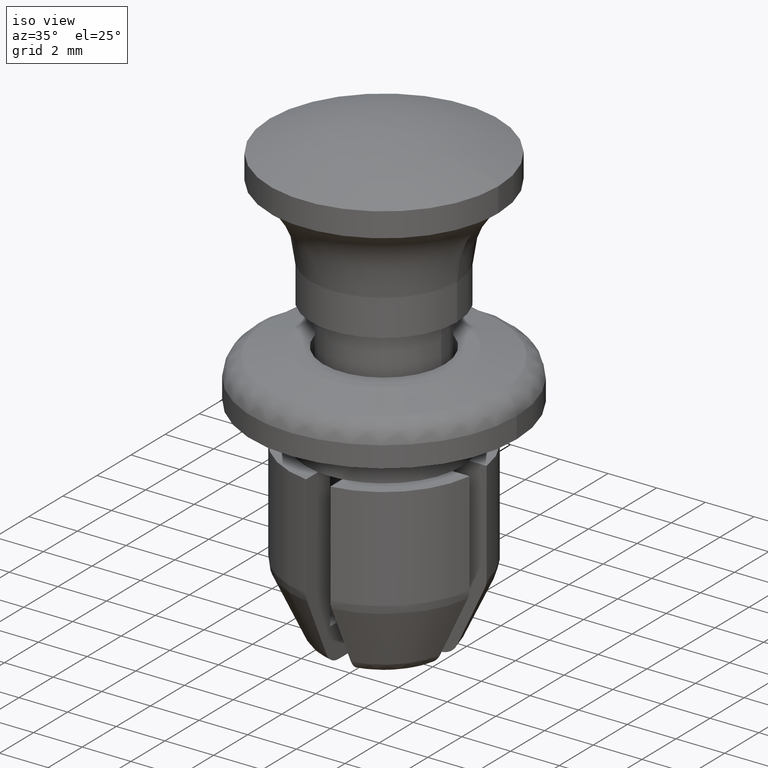
[diagram: clean part render]
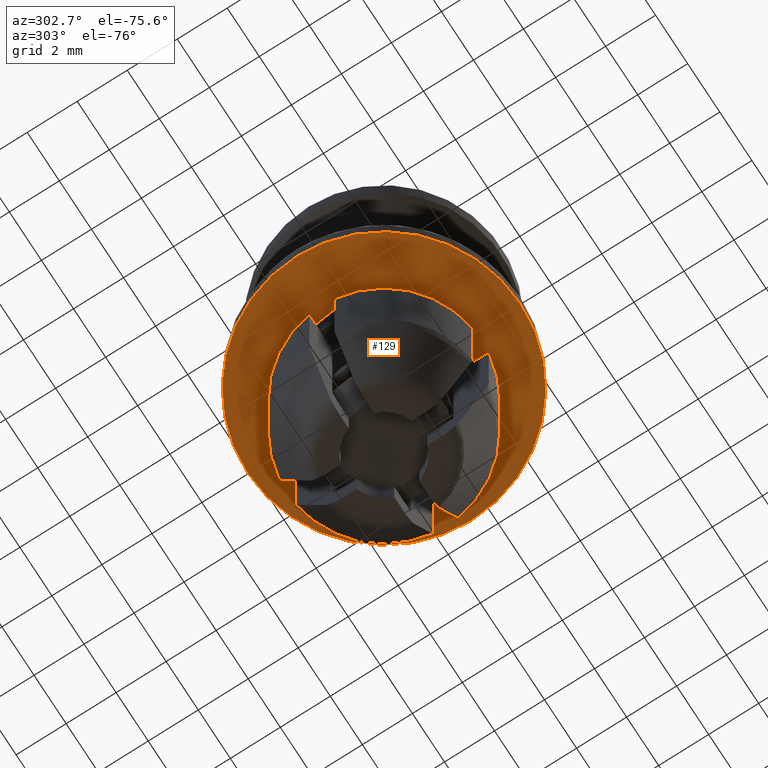
[diagram: tour spotlight — one face highlighted and labeled with its STEP entity id]
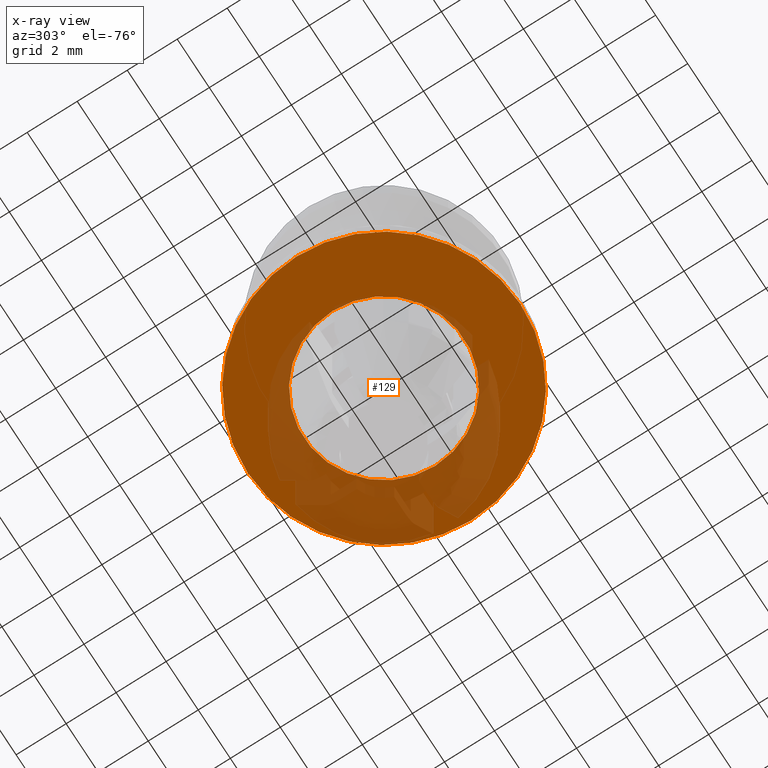
[diagram: x-ray of the same camera — body ghosted, this tour face saturated]
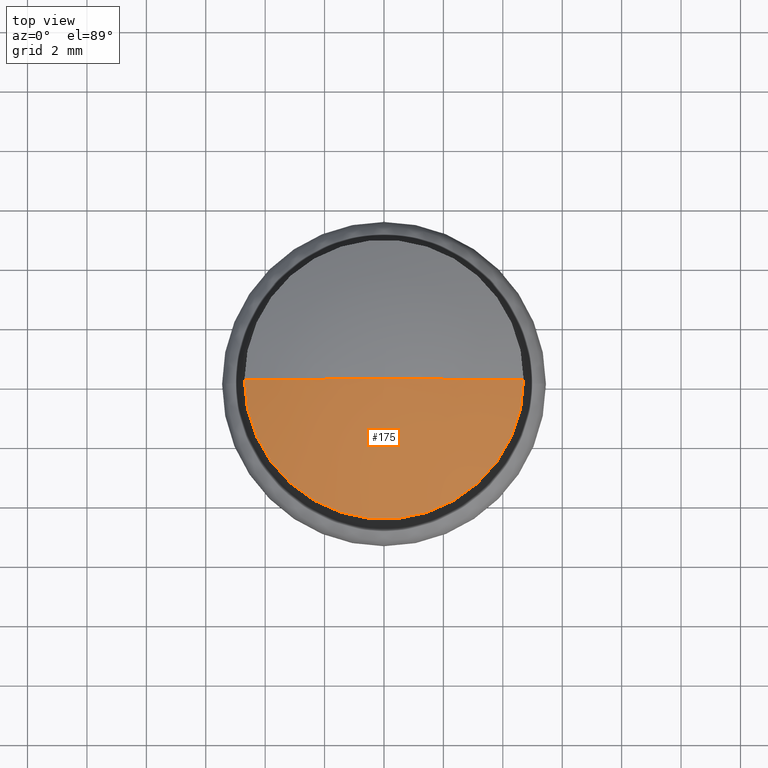
[diagram: tour spotlight — one face highlighted and labeled with its STEP entity id]
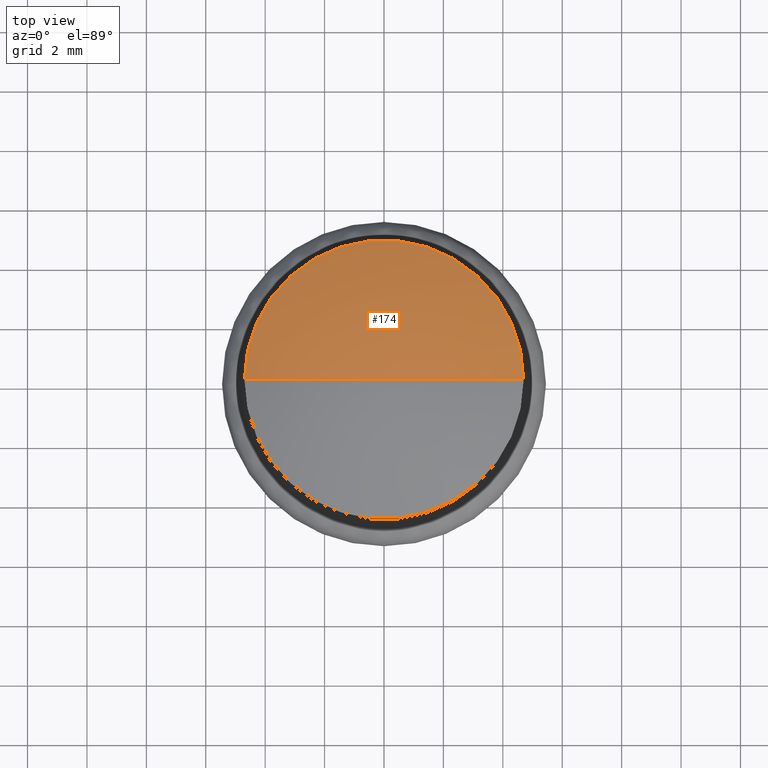
[diagram: tour spotlight — one face highlighted and labeled with its STEP entity id]
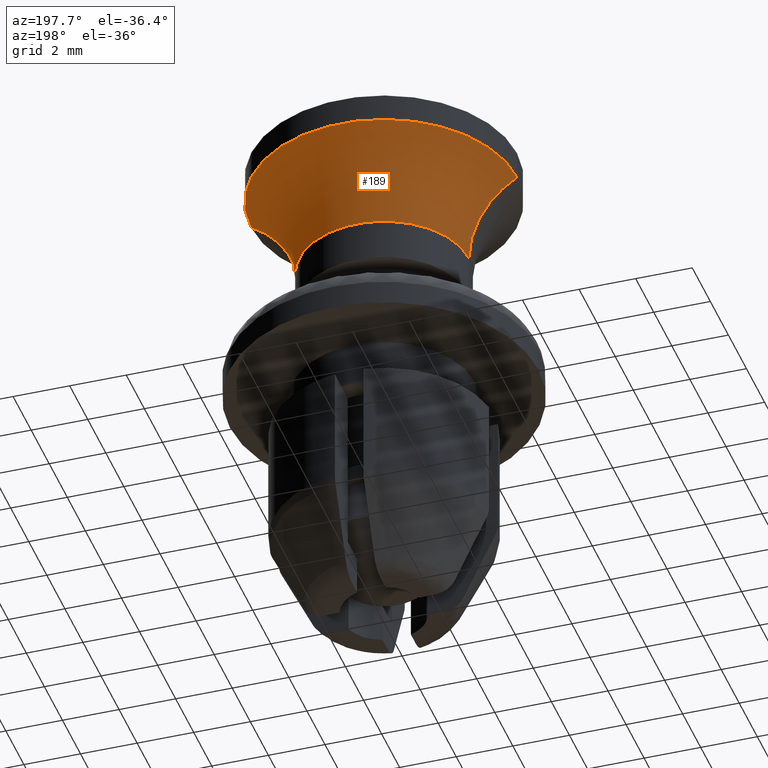
[diagram: tour spotlight — one face highlighted and labeled with its STEP entity id]
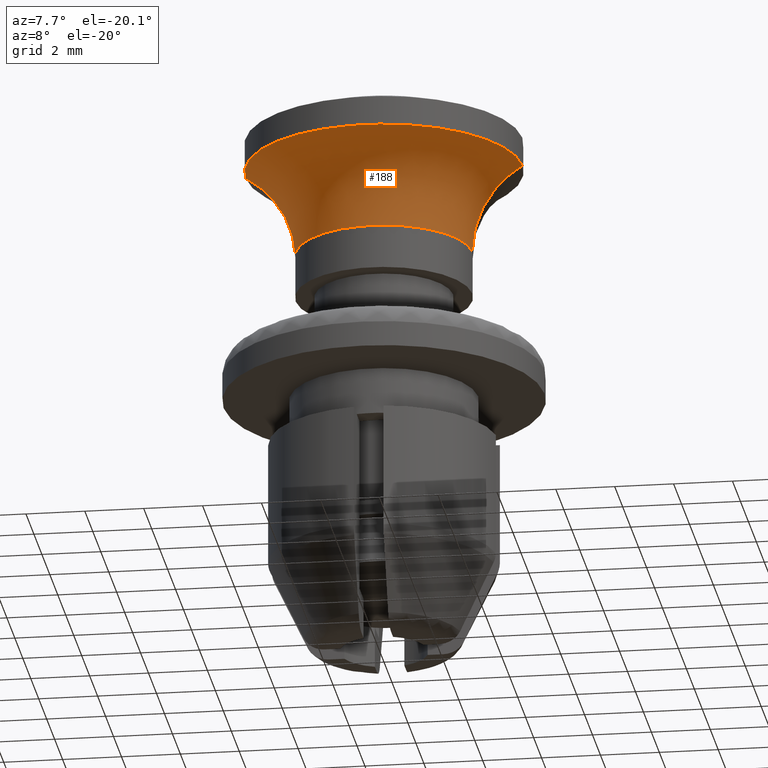
[diagram: tour spotlight — one face highlighted and labeled with its STEP entity id]
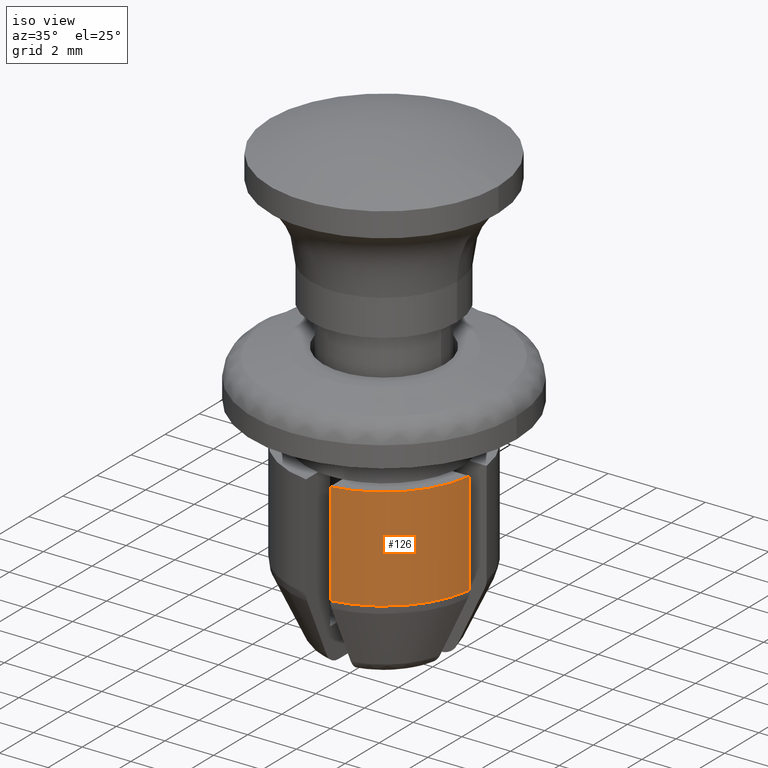
[diagram: tour spotlight — one face highlighted and labeled with its STEP entity id]
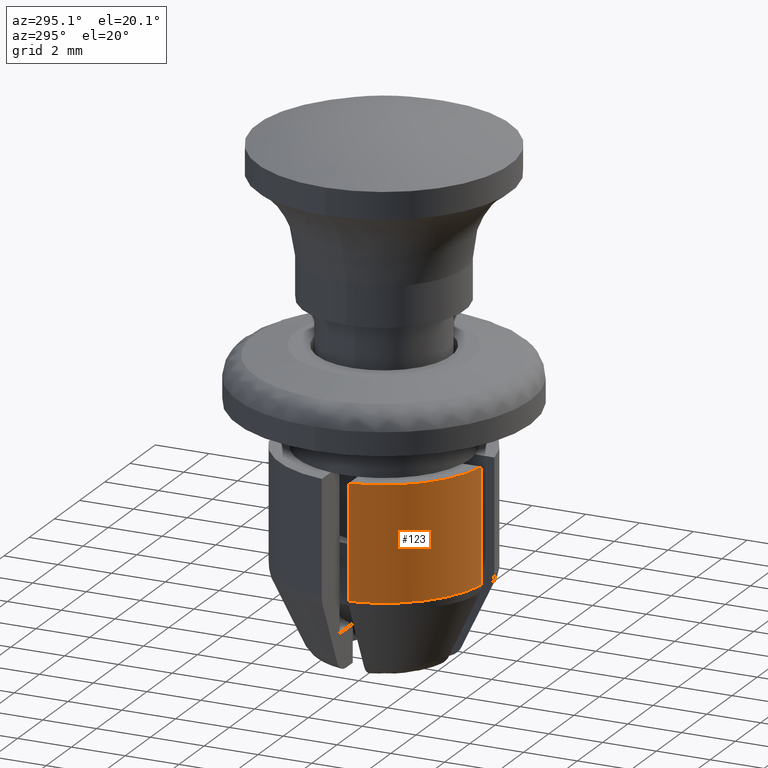
[diagram: tour spotlight — one face highlighted and labeled with its STEP entity id]
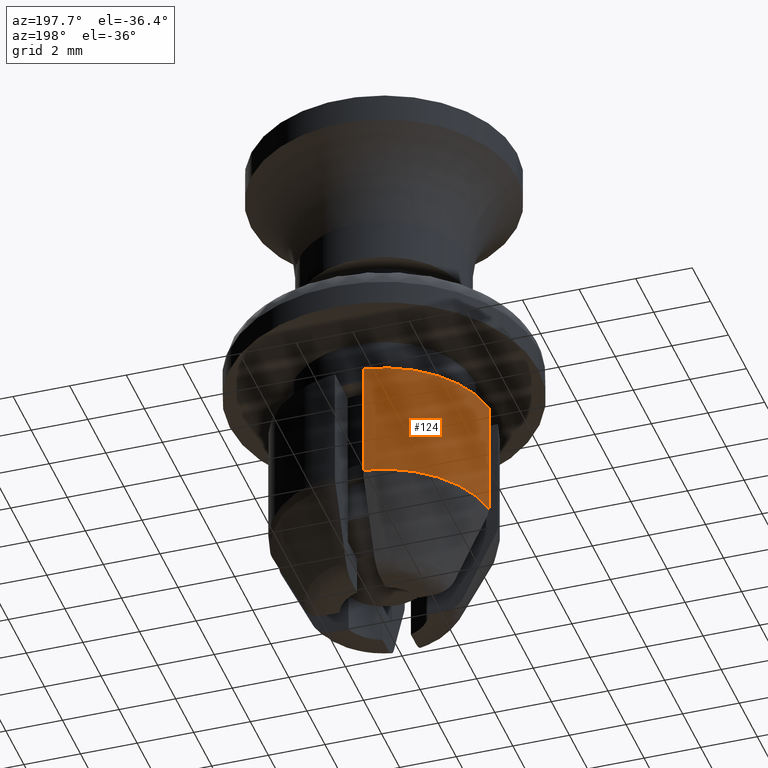
[diagram: tour spotlight — one face highlighted and labeled with its STEP entity id]
A machine part: a face-by-face anatomy tour. The part has 80 B-rep faces; the first image is the clean iso view, then the 8 largest visible faces are spotlighted one at a time (largest first), each with its STEP entity span.

Face 1 — auxiliary view, entity #129. An x-ray twin of the same camera follows (body ghosted, this face saturated) — the face is partly hidden behind the body. In plain terms, the highlighted planar face has unit normal (0, 0, -1).
Definition (entity closure, byte-faithful):
#129=ADVANCED_FACE('',(#364,#365),#363,.T.);
#363=PLANE('',#1102);
#364=FACE_OUTER_BOUND('',#1103,.T.);
#365=FACE_BOUND('',#1104,.T.);
#1099=CARTESIAN_POINT('',(1.25350000000E+01,-1.13276122815E+01,-2.00000000000E+00));
#1100=DIRECTION('',(0.00000000000E+00,0.00000000000E+00,-1.00000000000E+00));
#1101=DIRECTION('',(-1.00000000000E+00,0.00000000000E+00,0.00000000000E+00));
#1102=AXIS2_PLACEMENT_3D('',#1099,#1100,#1101);
#1103=EDGE_LOOP('',(#1704,#1705));
#1104=EDGE_LOOP('',(#1706,#1707));
#1704=ORIENTED_EDGE('',*,*,#2081,.T.);
#1705=ORIENTED_EDGE('',*,*,#2082,.T.);
#1706=ORIENTED_EDGE('',*,*,#2083,.F.);
#1707=ORIENTED_EDGE('',*,*,#2084,.F.);
#2081=EDGE_CURVE('',#2761,#2762,#2763,.T.);
#2082=EDGE_CURVE('',#2762,#2761,#2769,.T.);
#2083=EDGE_CURVE('',#2775,#2776,#2777,.T.);
#2084=EDGE_CURVE('',#2776,#2775,#2783,.T.);
#2761=VERTEX_POINT('',#3877);
#2762=VERTEX_POINT('',#3878);
#2763=CIRCLE('',#3882,5.45000000000E+00);
#2769=CIRCLE('',#3886,5.45000000000E+00);
#2775=VERTEX_POINT('',#3887);
#2776=VERTEX_POINT('',#3888);
#2777=CIRCLE('',#3892,3.20000000000E+00);
#2783=CIRCLE('',#3896,3.20000000000E+00);
#3877=CARTESIAN_POINT('',(-5.45000000000E+00,0.00000000000E+00,-2.00000000000E+00));
#3878=CARTESIAN_POINT('',(5.45000000000E+00,2.96059473233E-16,-2.00000000000E+00));
#3879=CARTESIAN_POINT('',(0.00000000000E+00,0.00000000000E+00,-2.00000000000E+00));
#3880=DIRECTION('',(-0.00000000000E+00,0.00000000000E+00,-1.00000000000E+00));
#3881=DIRECTION('',(-1.00000000000E+00,-1.22460635382E-16,0.00000000000E+00));
#3882=AXIS2_PLACEMENT_3D('',#3879,#3880,#3881);
#3883=CARTESIAN_POINT('',(0.00000000000E+00,0.00000000000E+00,-2.00000000000E+00));
#3884=DIRECTION('',(-0.00000000000E+00,0.00000000000E+00,-1.00000000000E+00));
#3885=DIRECTION('',(-1.00000000000E+00,-1.22460635382E-16,0.00000000000E+00));
#3886=AXIS2_PLACEMENT_3D('',#3883,#3884,#3885);
#3887=CARTESIAN_POINT('',(3.20000000000E+00,1.48029736617E-16,-2.00000000000E+00));
#3888=CARTESIAN_POINT('',(-3.20000000000E+00,0.00000000000E+00,-2.00000000000E+00));
#3889=CARTESIAN_POINT('',(0.00000000000E+00,0.00000000000E+00,-2.00000000000E+00));
#3890=DIRECTION('',(-0.00000000000E+00,0.00000000000E+00,-1.00000000000E+00));
#3891=DIRECTION('',(-1.00000000000E+00,-1.22460635382E-16,0.00000000000E+00));
#3892=AXIS2_PLACEMENT_3D('',#3889,#3890,#3891);
#3893=CARTESIAN_POINT('',(0.00000000000E+00,0.00000000000E+00,-2.00000000000E+00));
#3894=DIRECTION('',(-0.00000000000E+00,0.00000000000E+00,-1.00000000000E+00));
#3895=DIRECTION('',(-1.00000000000E+00,-1.22460635382E-16,0.00000000000E+00));
#3896=AXIS2_PLACEMENT_3D('',#3893,#3894,#3895);

Face 2 — top view, entity #175. In plain terms, the highlighted spherical surface has radius 11.545 mm.
Definition (entity closure, byte-faithful):
#175=ADVANCED_FACE('',(#828),#827,.T.);
#827=SPHERICAL_SURFACE('',#1446,1.15450000000E+01);
#828=FACE_OUTER_BOUND('',#1447,.T.);
#1443=CARTESIAN_POINT('',(0.00000000000E+00,0.00000000000E+00,-5.04500000000E+00));
#1444=DIRECTION('',(0.00000000000E+00,0.00000000000E+00,-1.00000000000E+00));
#1445=DIRECTION('',(1.00000000000E+00,4.04453249759E-21,0.00000000000E+00));
#1446=AXIS2_PLACEMENT_3D('',#1443,#1444,#1445);
#1447=EDGE_LOOP('',(#1931,#1932,#1933));
#1931=ORIENTED_EDGE('',*,*,#2168,.T.);
#1932=ORIENTED_EDGE('',*,*,#2167,.F.);
#1933=ORIENTED_EDGE('',*,*,#2169,.F.);
#2167=EDGE_CURVE('',#3289,#3288,#3322,.T.);
#2168=EDGE_CURVE('',#3328,#3288,#3329,.T.);
#2169=EDGE_CURVE('',#3328,#3289,#3335,.T.);
#3288=VERTEX_POINT('',#4217);
#3289=VERTEX_POINT('',#4218);
#3322=CIRCLE('',#4240,4.70000795576E+00);
#3328=VERTEX_POINT('',#4241);
#3329=(BOUNDED_CURVE() B_SPLINE_CURVE(2,(#4242,#4243,#4244),.UNSPECIFIED.,.F.,.F.) B_SPLINE_CURVE_WITH_KNOTS((3,3),(0.00000000000E+00,9.99997965990E-01),.UNSPECIFIED.) CURVE() GEOMETRIC_REPRESENTATION_ITEM() RATIONAL_B_SPLINE_CURVE((1.00000000000E+00,9.78105762392E-01,1.00000000000E+00)) REPRESENTATION_ITEM('') );
#3335=(BOUNDED_CURVE() B_SPLINE_CURVE(2,(#4245,#4246,#4247),.UNSPECIFIED.,.F.,.F.) B_SPLINE_CURVE_WITH_KNOTS((3,3),(0.00000000000E+00,1.00000000000E+00),.UNSPECIFIED.) CURVE() GEOMETRIC_REPRESENTATION_ITEM() RATIONAL_B_SPLINE_CURVE((7.50000000000E-01,7.33579321794E-01,7.50000000000E-01)) REPRESENTATION_ITEM('') );
#4217=CARTESIAN_POINT('',(-4.70000795576E+00,0.00000000000E+00,5.49999645404E+00));
#4218=CARTESIAN_POINT('',(4.70000795576E+00,2.96059473233E-16,5.49999645404E+00));
#4237=CARTESIAN_POINT('',(0.00000000000E+00,0.00000000000E+00,5.49999645404E+00));
#4238=DIRECTION('',(-0.00000000000E+00,0.00000000000E+00,-1.00000000000E+00));
#4239=DIRECTION('',(-1.00000000000E+00,-1.22460635382E-16,0.00000000000E+00));
#4240=AXIS2_PLACEMENT_3D('',#4237,#4238,#4239);
#4241=CARTESIAN_POINT('',(-7.06904017744E-16,8.65679151672E-32,6.50000000000E+00));
#4242=CARTESIAN_POINT('',(-7.06904017744E-16,8.65679151672E-32,6.50000000000E+00));
#4243=CARTESIAN_POINT('',(-2.45639263902E+00,3.00811403323E-16,6.50000000000E+00));
#4244=CARTESIAN_POINT('',(-4.70001688281E+00,5.75567053777E-16,5.49999247516E+00));
#4245=CARTESIAN_POINT('',(7.06904017744E-16,-9.86076131526E-32,6.50000000000E+00));
#4246=CARTESIAN_POINT('',(2.45639263902E+00,-3.02686564804E-16,6.50000000000E+00));
#4247=CARTESIAN_POINT('',(4.70001688281E+00,-5.92118946467E-16,5.49999247516E+00));

Face 3 — top view, entity #174. In plain terms, the highlighted spherical surface has radius 11.545 mm.
Definition (entity closure, byte-faithful):
#174=ADVANCED_FACE('',(#818),#817,.T.);
#817=SPHERICAL_SURFACE('',#1441,1.15450000000E+01);
#818=FACE_OUTER_BOUND('',#1442,.T.);
#1438=CARTESIAN_POINT('',(0.00000000000E+00,0.00000000000E+00,-5.04500000000E+00));
#1439=DIRECTION('',(0.00000000000E+00,0.00000000000E+00,-1.00000000000E+00));
#1440=DIRECTION('',(-1.00000000000E+00,1.22460635382E-16,-0.00000000000E+00));
#1441=AXIS2_PLACEMENT_3D('',#1438,#1439,#1440);
#1442=EDGE_LOOP('',(#1928,#1929,#1930));
#1928=ORIENTED_EDGE('',*,*,#2162,.F.);
#1929=ORIENTED_EDGE('',*,*,#2168,.F.);
#1930=ORIENTED_EDGE('',*,*,#2169,.T.);
#2162=EDGE_CURVE('',#3288,#3289,#3290,.T.);
#2168=EDGE_CURVE('',#3328,#3288,#3329,.T.);
#2169=EDGE_CURVE('',#3328,#3289,#3335,.T.);
#3288=VERTEX_POINT('',#4217);
#3289=VERTEX_POINT('',#4218);
#3290=CIRCLE('',#4222,4.70000795576E+00);
#3328=VERTEX_POINT('',#4241);
#3329=(BOUNDED_CURVE() B_SPLINE_CURVE(2,(#4242,#4243,#4244),.UNSPECIFIED.,.F.,.F.) B_SPLINE_CURVE_WITH_KNOTS((3,3),(0.00000000000E+00,9.99997965990E-01),.UNSPECIFIED.) CURVE() GEOMETRIC_REPRESENTATION_ITEM() RATIONAL_B_SPLINE_CURVE((1.00000000000E+00,9.78105762392E-01,1.00000000000E+00)) REPRESENTATION_ITEM('') );
#3335=(BOUNDED_CURVE() B_SPLINE_CURVE(2,(#4245,#4246,#4247),.UNSPECIFIED.,.F.,.F.) B_SPLINE_CURVE_WITH_KNOTS((3,3),(0.00000000000E+00,1.00000000000E+00),.UNSPECIFIED.) CURVE() GEOMETRIC_REPRESENTATION_ITEM() RATIONAL_B_SPLINE_CURVE((7.50000000000E-01,7.33579321794E-01,7.50000000000E-01)) REPRESENTATION_ITEM('') );
#4217=CARTESIAN_POINT('',(-4.70000795576E+00,0.00000000000E+00,5.49999645404E+00));
#4218=CARTESIAN_POINT('',(4.70000795576E+00,2.96059473233E-16,5.49999645404E+00));
#4219=CARTESIAN_POINT('',(0.00000000000E+00,0.00000000000E+00,5.49999645404E+00));
#4220=DIRECTION('',(-0.00000000000E+00,0.00000000000E+00,-1.00000000000E+00));
#4221=DIRECTION('',(-1.00000000000E+00,-1.22460635382E-16,0.00000000000E+00));
#4222=AXIS2_PLACEMENT_3D('',#4219,#4220,#4221);
#4241=CARTESIAN_POINT('',(-7.06904017744E-16,8.65679151672E-32,6.50000000000E+00));
#4242=CARTESIAN_POINT('',(-7.06904017744E-16,8.65679151672E-32,6.50000000000E+00));
#4243=CARTESIAN_POINT('',(-2.45639263902E+00,3.00811403323E-16,6.50000000000E+00));
#4244=CARTESIAN_POINT('',(-4.70001688281E+00,5.75567053777E-16,5.49999247516E+00));
#4245=CARTESIAN_POINT('',(7.06904017744E-16,-9.86076131526E-32,6.50000000000E+00));
#4246=CARTESIAN_POINT('',(2.45639263902E+00,-3.02686564804E-16,6.50000000000E+00));
#4247=CARTESIAN_POINT('',(4.70001688281E+00,-5.92118946467E-16,5.49999247516E+00));

Face 4 — auxiliary view, entity #189. In plain terms, the highlighted face is a freeform B-spline surface patch.
Definition (entity closure, byte-faithful):
#189=ADVANCED_FACE('',(#968),#967,.F.);
#967=( BOUNDED_SURFACE() B_SPLINE_SURFACE( 2,2,((#1570,#1571,#1572,#1573,#1574),(#1575,#1576,#1577,#1578,#1579),(#1580,#1581,#1582,#1583,#1584),(#1585,#1586,#1587,#1588,#1589),(#1590,#1591,#1592,#1593,#1594)), .UNSPECIFIED.,.F.,.F.,.F.) B_SPLINE_SURFACE_WITH_KNOTS((3,2,3),(3,2,3),(0.00000000000E+00,5.00000000000E-01,1.00000000000E+00),(0.00000000000E+00,5.00000000000E-01,1.00000000000E+00), .UNSPECIFIED. ) GEOMETRIC_REPRESENTATION_ITEM() RATIONAL_B_SPLINE_SURFACE(((1.00000000000E+00,7.07106781187E-01,1.00000000000E+00,7.07106781187E-01,1.00000000000E+00),(7.07106781187E-01,5.00000000000E-01,7.07106781187E-01,5.00000000000E-01,7.07106781187E-01),(1.00000000000E+00,7.07106781187E-01,1.00000000000E+00,7.07106781187E-01,1.00000000000E+00),(7.07106781187E-01,5.00000000000E-01,7.07106781187E-01,5.00000000000E-01,7.07106781187E-01),(1.00000000000E+00,7.07106781187E-01,1.00000000000E+00,7.07106781187E-01,1.00000000000E+00))) REPRESENTATION_ITEM('') SURFACE() );
#968=FACE_OUTER_BOUND('',#1595,.T.);
#1570=CARTESIAN_POINT('',(-3.00000000000E+00,-1.21335974928E-20,1.49800000000E+00));
#1571=CARTESIAN_POINT('',(-3.00000000000E+00,-1.21335974928E-20,4.99800000000E+00));
#1572=CARTESIAN_POINT('',(-6.50000000000E+00,-2.62894612344E-20,4.99800000000E+00));
#1573=CARTESIAN_POINT('',(-1.00000000000E+01,-4.04453249759E-20,4.99800000000E+00));
#1574=CARTESIAN_POINT('',(-1.00000000000E+01,-4.04453249759E-20,1.49800000000E+00));
#1575=CARTESIAN_POINT('',(-3.00000000000E+00,3.00000000000E+00,1.49800000000E+00));
#1576=CARTESIAN_POINT('',(-3.00000000000E+00,3.00000000000E+00,4.99800000000E+00));
#1577=CARTESIAN_POINT('',(-6.50000000000E+00,6.50000000000E+00,4.99800000000E+00));
#1578=CARTESIAN_POINT('',(-1.00000000000E+01,1.00000000000E+01,4.99800000000E+00));
#1579=CARTESIAN_POINT('',(-1.00000000000E+01,1.00000000000E+01,1.49800000000E+00));
#1580=CARTESIAN_POINT('',(-1.83709153470E-16,3.00000000000E+00,1.49800000000E+00));
#1581=CARTESIAN_POINT('',(-1.83709153470E-16,3.00000000000E+00,4.99800000000E+00));
#1582=CARTESIAN_POINT('',(-3.98036499184E-16,6.50000000000E+00,4.99800000000E+00));
#1583=CARTESIAN_POINT('',(-6.12363844899E-16,1.00000000000E+01,4.99800000000E+00));
#1584=CARTESIAN_POINT('',(-6.12363844899E-16,1.00000000000E+01,1.49800000000E+00));
#1585=CARTESIAN_POINT('',(3.00000000000E+00,3.00000000000E+00,1.49800000000E+00));
#1586=CARTESIAN_POINT('',(3.00000000000E+00,3.00000000000E+00,4.99800000000E+00));
#1587=CARTESIAN_POINT('',(6.50000000000E+00,6.50000000000E+00,4.99800000000E+00));
#1588=CARTESIAN_POINT('',(1.00000000000E+01,1.00000000000E+01,4.99800000000E+00));
#1589=CARTESIAN_POINT('',(1.00000000000E+01,1.00000000000E+01,1.49800000000E+00));
#1590=CARTESIAN_POINT('',(3.00000000000E+00,3.67406173342E-16,1.49800000000E+00));
#1591=CARTESIAN_POINT('',(3.00000000000E+00,3.67406173342E-16,4.99800000000E+00));
#1592=CARTESIAN_POINT('',(6.50000000000E+00,7.96046708907E-16,4.99800000000E+00));
#1593=CARTESIAN_POINT('',(1.00000000000E+01,1.22468724447E-15,4.99800000000E+00));
#1594=CARTESIAN_POINT('',(1.00000000000E+01,1.22468724447E-15,1.49800000000E+00));
#1595=EDGE_LOOP('',(#1986,#1987,#1988,#1989));
#1986=ORIENTED_EDGE('',*,*,#2164,.T.);
#1987=ORIENTED_EDGE('',*,*,#2190,.F.);
#1988=ORIENTED_EDGE('',*,*,#2186,.F.);
#1989=ORIENTED_EDGE('',*,*,#2191,.T.);
#2164=EDGE_CURVE('',#3303,#3296,#3304,.T.);
#2186=EDGE_CURVE('',#3443,#3444,#3445,.T.);
#2190=EDGE_CURVE('',#3444,#3296,#3469,.T.);
#2191=EDGE_CURVE('',#3443,#3303,#3475,.T.);
#3296=VERTEX_POINT('',#4223);
#3303=VERTEX_POINT('',#4226);
#3304=CIRCLE('',#4230,4.70000000000E+00);
#3443=VERTEX_POINT('',#4298);
#3444=VERTEX_POINT('',#4299);
#3445=CIRCLE('',#4303,3.00000000000E+00);
#3469=(BOUNDED_CURVE() B_SPLINE_CURVE(2,(#4312,#4313,#4314),.UNSPECIFIED.,.F.,.F.) B_SPLINE_CURVE_WITH_KNOTS((3,3),(0.00000000000E+00,3.24375852943E-01),.UNSPECIFIED.) CURVE() GEOMETRIC_REPRESENTATION_ITEM() RATIONAL_B_SPLINE_CURVE((1.00000000000E+00,8.09985024652E-01,8.66515128106E-01)) REPRESENTATION_ITEM('') );
#3475=(BOUNDED_CURVE() B_SPLINE_CURVE(2,(#4315,#4316,#4317),.UNSPECIFIED.,.F.,.F.) B_SPLINE_CURVE_WITH_KNOTS((3,3),(0.00000000000E+00,3.24375811853E-01),.UNSPECIFIED.) CURVE() GEOMETRIC_REPRESENTATION_ITEM() RATIONAL_B_SPLINE_CURVE((7.50000000000E-01,6.07488786542E-01,6.49886335338E-01)) REPRESENTATION_ITEM('') );
#4223=CARTESIAN_POINT('',(4.70000000000E+00,0.00000000000E+00,4.49966620396E+00));
#4226=CARTESIAN_POINT('',(-4.70000000000E+00,0.00000000000E+00,4.49966620396E+00));
#4227=CARTESIAN_POINT('',(0.00000000000E+00,0.00000000000E+00,4.49966620396E+00));
#4228=DIRECTION('',(-0.00000000000E+00,0.00000000000E+00,-1.00000000000E+00));
#4229=DIRECTION('',(-1.00000000000E+00,-1.22460635382E-16,0.00000000000E+00));
#4230=AXIS2_PLACEMENT_3D('',#4227,#4228,#4229);
#4298=CARTESIAN_POINT('',(-3.00000000000E+00,0.00000000000E+00,1.49800000000E+00));
#4299=CARTESIAN_POINT('',(3.00000000000E+00,-1.48029736617E-16,1.49800000000E+00));
#4300=CARTESIAN_POINT('',(0.00000000000E+00,0.00000000000E+00,1.49800000000E+00));
#4301=DIRECTION('',(-0.00000000000E+00,0.00000000000E+00,-1.00000000000E+00));
#4302=DIRECTION('',(-1.00000000000E+00,-1.22460635382E-16,0.00000000000E+00));
#4303=AXIS2_PLACEMENT_3D('',#4300,#4301,#4302);
#4312=CARTESIAN_POINT('',(3.00000000000E+00,-3.67381906147E-16,1.49800000000E+00));
#4313=CARTESIAN_POINT('',(3.00000000000E+00,-3.67381906147E-16,3.48023239692E+00));
#4314=CARTESIAN_POINT('',(4.69999999750E+00,-5.75564985990E-16,4.49966620246E+00));
#4315=CARTESIAN_POINT('',(-3.00000000000E+00,4.44089209850E-16,1.49800000000E+00));
#4316=CARTESIAN_POINT('',(-3.00000000000E+00,5.48268403905E-16,3.48023208692E+00));
#4317=CARTESIAN_POINT('',(-4.69999959491E+00,7.28200668964E-16,4.49966596104E+00));

Face 5 — auxiliary view, entity #188. In plain terms, the highlighted face is a freeform B-spline surface patch.
Definition (entity closure, byte-faithful):
#188=ADVANCED_FACE('',(#958),#957,.F.);
#957=( BOUNDED_SURFACE() B_SPLINE_SURFACE( 2,2,((#1544,#1545,#1546,#1547,#1548),(#1549,#1550,#1551,#1552,#1553),(#1554,#1555,#1556,#1557,#1558),(#1559,#1560,#1561,#1562,#1563),(#1564,#1565,#1566,#1567,#1568)), .UNSPECIFIED.,.F.,.F.,.F.) B_SPLINE_SURFACE_WITH_KNOTS((3,2,3),(3,2,3),(0.00000000000E+00,5.00000000000E-01,1.00000000000E+00),(0.00000000000E+00,5.00000000000E-01,1.00000000000E+00), .UNSPECIFIED. ) GEOMETRIC_REPRESENTATION_ITEM() RATIONAL_B_SPLINE_SURFACE(((1.00000000000E+00,7.07106781187E-01,1.00000000000E+00,7.07106781187E-01,1.00000000000E+00),(7.07106781187E-01,5.00000000000E-01,7.07106781187E-01,5.00000000000E-01,7.07106781187E-01),(1.00000000000E+00,7.07106781187E-01,1.00000000000E+00,7.07106781187E-01,1.00000000000E+00),(7.07106781187E-01,5.00000000000E-01,7.07106781187E-01,5.00000000000E-01,7.07106781187E-01),(1.00000000000E+00,7.07106781187E-01,1.00000000000E+00,7.07106781187E-01,1.00000000000E+00))) REPRESENTATION_ITEM('') SURFACE() );
#958=FACE_OUTER_BOUND('',#1569,.T.);
#1544=CARTESIAN_POINT('',(3.00000000000E+00,-3.67381906147E-16,1.49800000000E+00));
#1545=CARTESIAN_POINT('',(3.00000000000E+00,-3.67381906147E-16,4.99800000000E+00));
#1546=CARTESIAN_POINT('',(6.50000000000E+00,-7.95994129985E-16,4.99800000000E+00));
#1547=CARTESIAN_POINT('',(1.00000000000E+01,-1.22460635382E-15,4.99800000000E+00));
#1548=CARTESIAN_POINT('',(1.00000000000E+01,-1.22460635382E-15,1.49800000000E+00));
#1549=CARTESIAN_POINT('',(3.00000000000E+00,-3.00000000000E+00,1.49800000000E+00));
#1550=CARTESIAN_POINT('',(3.00000000000E+00,-3.00000000000E+00,4.99800000000E+00));
#1551=CARTESIAN_POINT('',(6.50000000000E+00,-6.50000000000E+00,4.99800000000E+00));
#1552=CARTESIAN_POINT('',(1.00000000000E+01,-1.00000000000E+01,4.99800000000E+00));
#1553=CARTESIAN_POINT('',(1.00000000000E+01,-1.00000000000E+01,1.49800000000E+00));
#1554=CARTESIAN_POINT('',(-1.83684886275E-16,-3.00000000000E+00,1.49800000000E+00));
#1555=CARTESIAN_POINT('',(-1.83684886275E-16,-3.00000000000E+00,4.99800000000E+00));
#1556=CARTESIAN_POINT('',(-3.97983920262E-16,-6.50000000000E+00,4.99800000000E+00));
#1557=CARTESIAN_POINT('',(-6.12282954249E-16,-1.00000000000E+01,4.99800000000E+00));
#1558=CARTESIAN_POINT('',(-6.12282954249E-16,-1.00000000000E+01,1.49800000000E+00));
#1559=CARTESIAN_POINT('',(-3.00000000000E+00,-3.00000000000E+00,1.49800000000E+00));
#1560=CARTESIAN_POINT('',(-3.00000000000E+00,-3.00000000000E+00,4.99800000000E+00));
#1561=CARTESIAN_POINT('',(-6.50000000000E+00,-6.50000000000E+00,4.99800000000E+00));
#1562=CARTESIAN_POINT('',(-1.00000000000E+01,-1.00000000000E+01,4.99800000000E+00));
#1563=CARTESIAN_POINT('',(-1.00000000000E+01,-1.00000000000E+01,1.49800000000E+00));
#1564=CARTESIAN_POINT('',(-3.00000000000E+00,-1.21335974928E-20,1.49800000000E+00));
#1565=CARTESIAN_POINT('',(-3.00000000000E+00,-1.21335974928E-20,4.99800000000E+00));
#1566=CARTESIAN_POINT('',(-6.50000000000E+00,-2.62894612344E-20,4.99800000000E+00));
#1567=CARTESIAN_POINT('',(-1.00000000000E+01,-4.04453249759E-20,4.99800000000E+00));
#1568=CARTESIAN_POINT('',(-1.00000000000E+01,-4.04453249760E-20,1.49800000000E+00));
#1569=EDGE_LOOP('',(#1982,#1983,#1984,#1985));
#1982=ORIENTED_EDGE('',*,*,#2189,.F.);
#1983=ORIENTED_EDGE('',*,*,#2190,.T.);
#1984=ORIENTED_EDGE('',*,*,#2166,.T.);
#1985=ORIENTED_EDGE('',*,*,#2191,.F.);
#2166=EDGE_CURVE('',#3296,#3303,#3316,.T.);
#2189=EDGE_CURVE('',#3444,#3443,#3463,.T.);
#2190=EDGE_CURVE('',#3444,#3296,#3469,.T.);
#2191=EDGE_CURVE('',#3443,#3303,#3475,.T.);
#3296=VERTEX_POINT('',#4223);
#3303=VERTEX_POINT('',#4226);
#3316=CIRCLE('',#4236,4.70000000000E+00);
#3443=VERTEX_POINT('',#4298);
#3444=VERTEX_POINT('',#4299);
#3463=CIRCLE('',#4311,3.00000000000E+00);
#3469=(BOUNDED_CURVE() B_SPLINE_CURVE(2,(#4312,#4313,#4314),.UNSPECIFIED.,.F.,.F.) B_SPLINE_CURVE_WITH_KNOTS((3,3),(0.00000000000E+00,3.24375852943E-01),.UNSPECIFIED.) CURVE() GEOMETRIC_REPRESENTATION_ITEM() RATIONAL_B_SPLINE_CURVE((1.00000000000E+00,8.09985024652E-01,8.66515128106E-01)) REPRESENTATION_ITEM('') );
#3475=(BOUNDED_CURVE() B_SPLINE_CURVE(2,(#4315,#4316,#4317),.UNSPECIFIED.,.F.,.F.) B_SPLINE_CURVE_WITH_KNOTS((3,3),(0.00000000000E+00,3.24375811853E-01),.UNSPECIFIED.) CURVE() GEOMETRIC_REPRESENTATION_ITEM() RATIONAL_B_SPLINE_CURVE((7.50000000000E-01,6.07488786542E-01,6.49886335338E-01)) REPRESENTATION_ITEM('') );
#4223=CARTESIAN_POINT('',(4.70000000000E+00,0.00000000000E+00,4.49966620396E+00));
#4226=CARTESIAN_POINT('',(-4.70000000000E+00,0.00000000000E+00,4.49966620396E+00));
#4233=CARTESIAN_POINT('',(0.00000000000E+00,0.00000000000E+00,4.49966620396E+00));
#4234=DIRECTION('',(-0.00000000000E+00,0.00000000000E+00,-1.00000000000E+00));
#4235=DIRECTION('',(-1.00000000000E+00,-1.22460635382E-16,0.00000000000E+00));
#4236=AXIS2_PLACEMENT_3D('',#4233,#4234,#4235);
#4298=CARTESIAN_POINT('',(-3.00000000000E+00,0.00000000000E+00,1.49800000000E+00));
#4299=CARTESIAN_POINT('',(3.00000000000E+00,-1.48029736617E-16,1.49800000000E+00));
#4308=CARTESIAN_POINT('',(0.00000000000E+00,0.00000000000E+00,1.49800000000E+00));
#4309=DIRECTION('',(-0.00000000000E+00,0.00000000000E+00,-1.00000000000E+00));
#4310=DIRECTION('',(-1.00000000000E+00,-1.22460635382E-16,0.00000000000E+00));
#4311=AXIS2_PLACEMENT_3D('',#4308,#4309,#4310);
#4312=CARTESIAN_POINT('',(3.00000000000E+00,-3.67381906147E-16,1.49800000000E+00));
#4313=CARTESIAN_POINT('',(3.00000000000E+00,-3.67381906147E-16,3.48023239692E+00));
#4314=CARTESIAN_POINT('',(4.69999999750E+00,-5.75564985990E-16,4.49966620246E+00));
#4315=CARTESIAN_POINT('',(-3.00000000000E+00,4.44089209850E-16,1.49800000000E+00));
#4316=CARTESIAN_POINT('',(-3.00000000000E+00,5.48268403905E-16,3.48023208692E+00));
#4317=CARTESIAN_POINT('',(-4.69999959491E+00,7.28200668964E-16,4.49966596104E+00));

Face 6 — iso view, entity #126. In plain terms, the highlighted cylindrical surface (partial cylindrical patch) has radius 3.9 mm, axis along (0, 0, 1).
Definition (entity closure, byte-faithful):
#126=ADVANCED_FACE('',(#333),#332,.T.);
#332=CYLINDRICAL_SURFACE('',#1086,3.90000000000E+00);
#333=FACE_OUTER_BOUND('',#1087,.T.);
#1083=CARTESIAN_POINT('',(0.00000000000E+00,0.00000000000E+00,0.00000000000E+00));
#1084=DIRECTION('',(-0.00000000000E+00,-0.00000000000E+00,1.00000000000E+00));
#1085=DIRECTION('',(1.00000000000E+00,-0.00000000000E+00,-0.00000000000E+00));
#1086=AXIS2_PLACEMENT_3D('',#1083,#1084,#1085);
#1087=EDGE_LOOP('',(#1692,#1693,#1694,#1695));
#1692=ORIENTED_EDGE('',*,*,#2072,.F.);
#1693=ORIENTED_EDGE('',*,*,#2073,.T.);
#1694=ORIENTED_EDGE('',*,*,#2074,.T.);
#1695=ORIENTED_EDGE('',*,*,#2048,.F.);
#2048=EDGE_CURVE('',#2537,#2544,#2545,.T.);
#2072=EDGE_CURVE('',#2695,#2537,#2702,.T.);
#2073=EDGE_CURVE('',#2695,#2708,#2709,.T.);
#2074=EDGE_CURVE('',#2708,#2544,#2715,.T.);
#2537=VERTEX_POINT('',#3726);
#2544=VERTEX_POINT('',#3733);
#2545=LINE('',#3734,#3735);
#2695=VERTEX_POINT('',#3830);
#2702=CIRCLE('',#3840,3.90000000000E+00);
#2708=VERTEX_POINT('',#3841);
#2709=LINE('',#3842,#3843);
#2715=CIRCLE('',#3848,3.90000000000E+00);
#3726=CARTESIAN_POINT('',(5.00000000000E-01,-3.86781592116E+00,-7.83400000000E+00));
#3733=CARTESIAN_POINT('',(5.00000000000E-01,-3.86781592116E+00,-3.60000000000E+00));
#3734=CARTESIAN_POINT('',(5.00000000000E-01,-3.86781592116E+00,-7.83400000000E+00));
#3735=VECTOR('',#3736,4.23400000000E+00);
#3736=DIRECTION('',(0.00000000000E+00,0.00000000000E+00,1.00000000000E+00));
#3830=CARTESIAN_POINT('',(3.86781592116E+00,-5.00000000000E-01,-7.83400000000E+00));
#3837=CARTESIAN_POINT('',(0.00000000000E+00,0.00000000000E+00,-7.83400000000E+00));
#3838=DIRECTION('',(0.00000000000E+00,0.00000000000E+00,-1.00000000000E+00));
#3839=DIRECTION('',(1.00000000000E+00,-0.00000000000E+00,-0.00000000000E+00));
#3840=AXIS2_PLACEMENT_3D('',#3837,#3838,#3839);
#3841=CARTESIAN_POINT('',(3.86781592116E+00,-5.00000000000E-01,-3.60000000000E+00));
#3842=CARTESIAN_POINT('',(3.86781592116E+00,-5.00000000000E-01,-7.83400000000E+00));
#3843=VECTOR('',#3844,4.23400000000E+00);
#3844=DIRECTION('',(0.00000000000E+00,0.00000000000E+00,1.00000000000E+00));
#3845=CARTESIAN_POINT('',(0.00000000000E+00,0.00000000000E+00,-3.60000000000E+00));
#3846=DIRECTION('',(0.00000000000E+00,0.00000000000E+00,-1.00000000000E+00));
#3847=DIRECTION('',(1.00000000000E+00,-0.00000000000E+00,-0.00000000000E+00));
#3848=AXIS2_PLACEMENT_3D('',#3845,#3846,#3847);

Face 7 — auxiliary view, entity #123. In plain terms, the highlighted cylindrical surface (partial cylindrical patch) has radius 3.9 mm, axis along (0, 0, 1).
Definition (entity closure, byte-faithful):
#123=ADVANCED_FACE('',(#303),#302,.T.);
#302=CYLINDRICAL_SURFACE('',#1066,3.90000000000E+00);
#303=FACE_OUTER_BOUND('',#1067,.T.);
#1063=CARTESIAN_POINT('',(0.00000000000E+00,0.00000000000E+00,0.00000000000E+00));
#1064=DIRECTION('',(-0.00000000000E+00,-0.00000000000E+00,1.00000000000E+00));
#1065=DIRECTION('',(1.00000000000E+00,-0.00000000000E+00,-0.00000000000E+00));
#1066=AXIS2_PLACEMENT_3D('',#1063,#1064,#1065);
#1067=EDGE_LOOP('',(#1680,#1681,#1682,#1683));
#1680=ORIENTED_EDGE('',*,*,#2064,.F.);
#1681=ORIENTED_EDGE('',*,*,#2001,.T.);
#1682=ORIENTED_EDGE('',*,*,#2065,.T.);
#1683=ORIENTED_EDGE('',*,*,#2066,.F.);
#2001=EDGE_CURVE('',#2216,#2209,#2217,.T.);
#2064=EDGE_CURVE('',#2216,#2648,#2649,.T.);
#2065=EDGE_CURVE('',#2209,#2655,#2656,.T.);
#2066=EDGE_CURVE('',#2648,#2655,#2662,.T.);
#2209=VERTEX_POINT('',#3502);
#2216=VERTEX_POINT('',#3506);
#2217=LINE('',#3507,#3508);
#2648=VERTEX_POINT('',#3799);
#2649=CIRCLE('',#3803,3.90000000000E+00);
#2655=VERTEX_POINT('',#3804);
#2656=CIRCLE('',#3808,3.90000000000E+00);
#2662=LINE('',#3809,#3810);
#3502=CARTESIAN_POINT('',(-5.00000000000E-01,-3.86781592116E+00,-3.60000000000E+00));
#3506=CARTESIAN_POINT('',(-5.00000000000E-01,-3.86781592116E+00,-7.83400000000E+00));
#3507=CARTESIAN_POINT('',(-5.00000000000E-01,-3.86781592116E+00,-7.83400000000E+00));
#3508=VECTOR('',#3509,4.23400000000E+00);
#3509=DIRECTION('',(0.00000000000E+00,0.00000000000E+00,1.00000000000E+00));
#3799=CARTESIAN_POINT('',(-3.86781592116E+00,-5.00000000000E-01,-7.83400000000E+00));
#3800=CARTESIAN_POINT('',(0.00000000000E+00,0.00000000000E+00,-7.83400000000E+00));
#3801=DIRECTION('',(0.00000000000E+00,0.00000000000E+00,-1.00000000000E+00));
#3802=DIRECTION('',(1.00000000000E+00,-0.00000000000E+00,-0.00000000000E+00));
#3803=AXIS2_PLACEMENT_3D('',#3800,#3801,#3802);
#3804=CARTESIAN_POINT('',(-3.86781592116E+00,-5.00000000000E-01,-3.60000000000E+00));
#3805=CARTESIAN_POINT('',(0.00000000000E+00,0.00000000000E+00,-3.60000000000E+00));
#3806=DIRECTION('',(0.00000000000E+00,0.00000000000E+00,-1.00000000000E+00));
#3807=DIRECTION('',(1.00000000000E+00,-0.00000000000E+00,-0.00000000000E+00));
#3808=AXIS2_PLACEMENT_3D('',#3805,#3806,#3807);
#3809=CARTESIAN_POINT('',(-3.86781592116E+00,-5.00000000000E-01,-7.83400000000E+00));
#3810=VECTOR('',#3811,4.23400000000E+00);
#3811=DIRECTION('',(0.00000000000E+00,0.00000000000E+00,1.00000000000E+00));

Face 8 — auxiliary view, entity #124. In plain terms, the highlighted cylindrical surface (partial cylindrical patch) has radius 3.9 mm, axis along (0, 0, 1).
Definition (entity closure, byte-faithful):
#124=ADVANCED_FACE('',(#313),#312,.T.);
#312=CYLINDRICAL_SURFACE('',#1071,3.90000000000E+00);
#313=FACE_OUTER_BOUND('',#1072,.T.);
#1068=CARTESIAN_POINT('',(0.00000000000E+00,0.00000000000E+00,0.00000000000E+00));
#1069=DIRECTION('',(-0.00000000000E+00,-0.00000000000E+00,1.00000000000E+00));
#1070=DIRECTION('',(1.00000000000E+00,-0.00000000000E+00,-0.00000000000E+00));
#1071=AXIS2_PLACEMENT_3D('',#1068,#1069,#1070);
#1072=EDGE_LOOP('',(#1684,#1685,#1686,#1687));
#1684=ORIENTED_EDGE('',*,*,#2067,.F.);
#1685=ORIENTED_EDGE('',*,*,#2014,.T.);
#1686=ORIENTED_EDGE('',*,*,#2068,.T.);
#1687=ORIENTED_EDGE('',*,*,#2069,.F.);
#2014=EDGE_CURVE('',#2306,#2299,#2307,.T.);
#2067=EDGE_CURVE('',#2306,#2668,#2669,.T.);
#2068=EDGE_CURVE('',#2299,#2675,#2676,.T.);
#2069=EDGE_CURVE('',#2668,#2675,#2682,.T.);
#2299=VERTEX_POINT('',#3565);
#2306=VERTEX_POINT('',#3569);
#2307=LINE('',#3570,#3571);
#2668=VERTEX_POINT('',#3812);
#2669=CIRCLE('',#3816,3.90000000000E+00);
#2675=VERTEX_POINT('',#3817);
#2676=CIRCLE('',#3821,3.90000000000E+00);
#2682=LINE('',#3822,#3823);
#3565=CARTESIAN_POINT('',(-3.86781592116E+00,5.00000000000E-01,-3.60000000000E+00));
#3569=CARTESIAN_POINT('',(-3.86781592116E+00,5.00000000000E-01,-7.83400000000E+00));
#3570=CARTESIAN_POINT('',(-3.86781592116E+00,5.00000000000E-01,-7.83400000000E+00));
#3571=VECTOR('',#3572,4.23400000000E+00);
#3572=DIRECTION('',(0.00000000000E+00,0.00000000000E+00,1.00000000000E+00));
#3812=CARTESIAN_POINT('',(-5.00000000000E-01,3.86781592116E+00,-7.83400000000E+00));
#3813=CARTESIAN_POINT('',(0.00000000000E+00,0.00000000000E+00,-7.83400000000E+00));
#3814=DIRECTION('',(0.00000000000E+00,0.00000000000E+00,-1.00000000000E+00));
#3815=DIRECTION('',(1.00000000000E+00,-0.00000000000E+00,-0.00000000000E+00));
#3816=AXIS2_PLACEMENT_3D('',#3813,#3814,#3815);
#3817=CARTESIAN_POINT('',(-5.00000000000E-01,3.86781592116E+00,-3.60000000000E+00));
#3818=CARTESIAN_POINT('',(0.00000000000E+00,0.00000000000E+00,-3.60000000000E+00));
#3819=DIRECTION('',(0.00000000000E+00,0.00000000000E+00,-1.00000000000E+00));
#3820=DIRECTION('',(1.00000000000E+00,-0.00000000000E+00,-0.00000000000E+00));
#3821=AXIS2_PLACEMENT_3D('',#3818,#3819,#3820);
#3822=CARTESIAN_POINT('',(-5.00000000000E-01,3.86781592116E+00,-7.83400000000E+00));
#3823=VECTOR('',#3824,4.23400000000E+00);
#3824=DIRECTION('',(0.00000000000E+00,0.00000000000E+00,1.00000000000E+00));